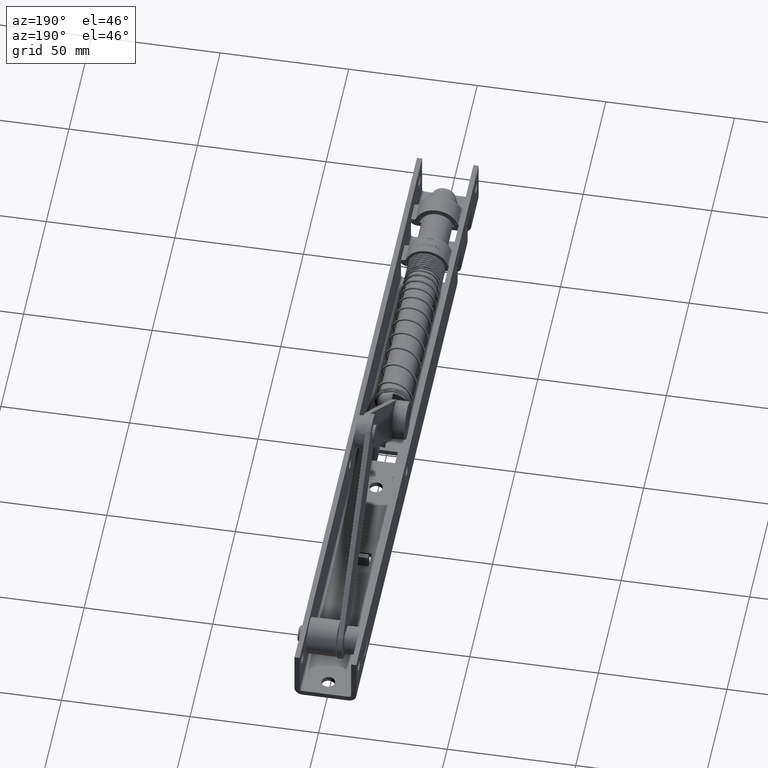
[diagram: clean part render]
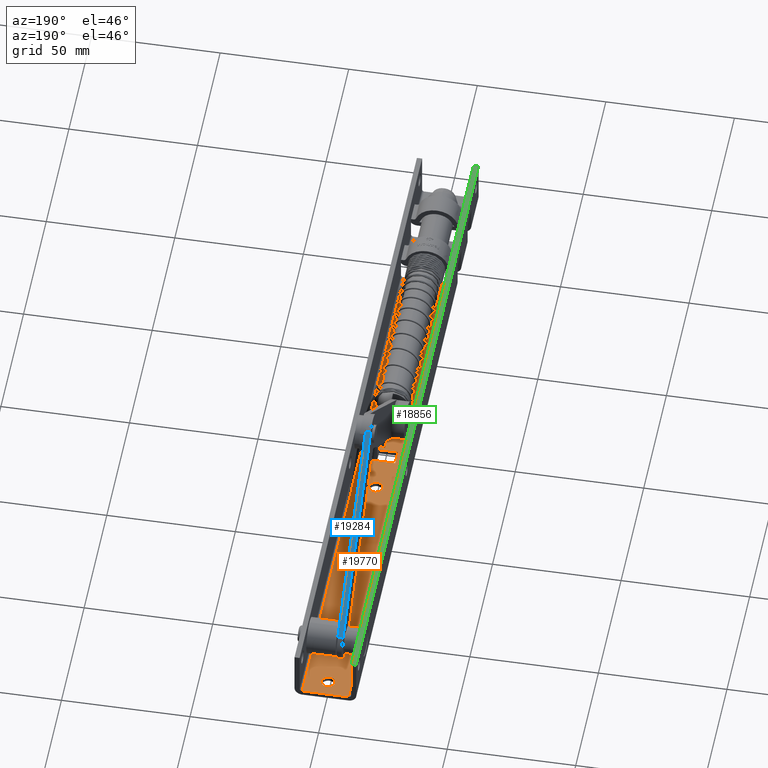
[diagram: same view with three faces highlighted in distinct colors, each labeled with its STEP entity id]
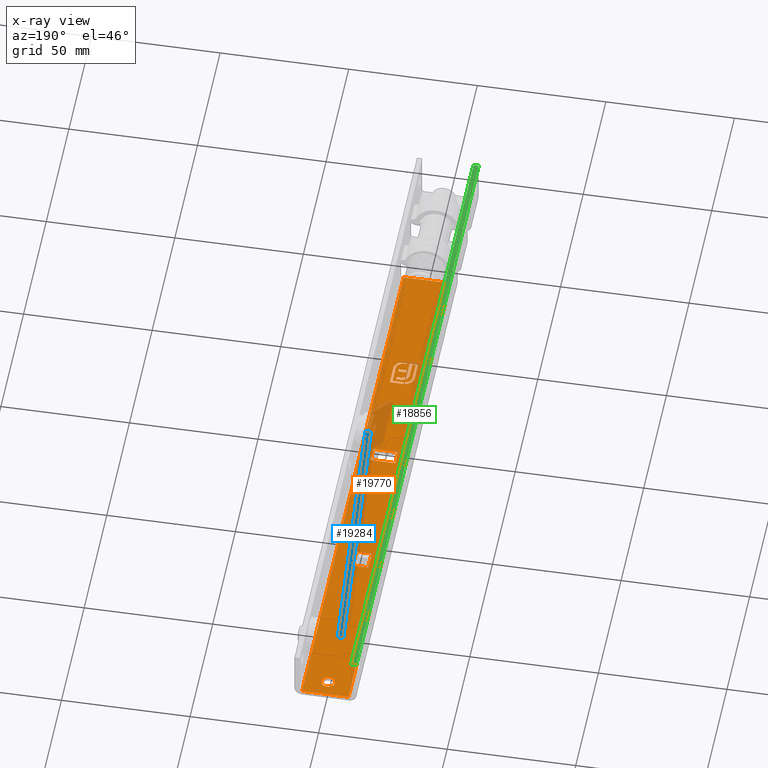
[diagram: x-ray of the same camera — body ghosted, the three highlighted faces saturated]
A machine part, auxiliary view with three faces highlighted in distinct colors.
The next image is the same camera in x-ray (body ghosted, the three faces saturated) — at least one of them is partly hidden behind the body in this view.
Their STEP definitions:

[orange] entity #19770 — the highlighted planar face has unit normal (0, 0, -1).
#2 = CARTESIAN_POINT ( 'NONE',  ( -1.450317444068548456, -32.76310203919906172, -17.99999999999999645 ) ) ;
#40 = CARTESIAN_POINT ( 'NONE',  ( 0.3541213676529288978, -35.88812421357301474, -18.00000000000000000 ) ) ;
#108 = CARTESIAN_POINT ( 'NONE',  ( 0.02687140325140589814, -35.96653243512771780, -18.00000000000000000 ) ) ;
#264 = EDGE_CURVE ( 'NONE', #19681, #2450, #3039, .T. ) ;
#285 = EDGE_CURVE ( 'NONE', #7523, #9255, #20796, .T. ) ;
#311 = CARTESIAN_POINT ( 'NONE',  ( 2.033944563684493279, -44.01110034278843841, -17.99999999999999645 ) ) ;
#334 = VERTEX_POINT ( 'NONE', #10894 ) ;
#363 = CARTESIAN_POINT ( 'NONE',  ( -2.223474969585861771, -33.02476027283003646, -18.00000000000000711 ) ) ;
#457 = VERTEX_POINT ( 'NONE', #11191 ) ;
#519 = CARTESIAN_POINT ( 'NONE',  ( 2.050510257216821230, 3.400000000000000355, -17.99999999999999645 ) ) ;
#701 = CARTESIAN_POINT ( 'NONE',  ( 3.886167483088404762, -42.42689526475390949, -18.00000000000000000 ) ) ;
#731 = EDGE_CURVE ( 'NONE', #8906, #1638, #9983, .T. ) ;
#748 = ORIENTED_EDGE ( 'NONE', *, *, #7400, .T. ) ;
#810 = DIRECTION ( 'NONE',  ( 0.000000000000000000, 0.000000000000000000, -1.000000000000000000 ) ) ;
#825 = CARTESIAN_POINT ( 'NONE',  ( -3.638908327501751305, -36.61630510846746489, -18.00000000000000000 ) ) ;
#836 = CARTESIAN_POINT ( 'NONE',  ( 4.485654303708885848, -32.67881968742711507, -18.00000000000000000 ) ) ;
#903 = AXIS2_PLACEMENT_3D ( 'NONE', #6761, #20669, #10358 ) ;
#971 = CARTESIAN_POINT ( 'NONE',  ( -2.286566965068230761, -36.87164919007444297, -17.99999999999999289 ) ) ;
#985 = CARTESIAN_POINT ( 'NONE',  ( 1.999999999999999112, 3.400000000000000355, -17.99999999999999645 ) ) ;
#1004 = CARTESIAN_POINT ( 'NONE',  ( 2.673198040587822177, -42.50387217168183440, -18.00000000000000000 ) ) ;
#1137 = ORIENTED_EDGE ( 'NONE', *, *, #7102, .T. ) ;
#1164 = CARTESIAN_POINT ( 'NONE',  ( 1.499999999999999556, 58.39999999999999147, -17.99999999999999645 ) ) ;
#1260 = CARTESIAN_POINT ( 'NONE',  ( 9.000000000000001776, 135.0000000000000000, -18.00000000000000000 ) ) ;
#1264 = EDGE_CURVE ( 'NONE', #4887, #8955, #18357, .T. ) ;
#1271 = VECTOR ( 'NONE', #18451, 1000.000000000000000 ) ;
#1300 = B_SPLINE_CURVE_WITH_KNOTS ( 'NONE', 3,
 ( #15164, #10035, #20286, #2925, #3086, #15002, #4660, #4585, #15078, #9951, #16594 ),
 .UNSPECIFIED., .F., .F.,
 ( 4, 1, 1, 1, 1, 1, 1, 1, 4 ),
 ( 0.000000000000000000, 0.1299147880206149852, 0.2554450878987838958, 0.3781545628213971999, 0.5004347043268613238, 0.6221840494551672540, 0.7449768315553542131, 0.8705846910948455974, 1.000000000000000000 ),
 .UNSPECIFIED. ) ;
#1345 = VERTEX_POINT ( 'NONE', #6509 ) ;
#1375 = EDGE_CURVE ( 'NONE', #14220, #10918, #1300, .T. ) ;
#1385 = CARTESIAN_POINT ( 'NONE',  ( -0.9195871931950996281, -33.60109770351084535, -17.99999999999999645 ) ) ;
#1399 = CARTESIAN_POINT ( 'NONE',  ( 4.327035222766502542, -41.46585024492652849, -18.00000000000000000 ) ) ;
#1403 = EDGE_CURVE ( 'NONE', #4586, #16682, #8668, .T. ) ;
#1471 = CARTESIAN_POINT ( 'NONE',  ( 4.140245801967156858, -41.96501386707861059, -18.00000000000000000 ) ) ;
#1499 = CARTESIAN_POINT ( 'NONE',  ( 3.568614095397494079, -40.46451550711189071, -18.00000000000000355 ) ) ;
#1577 = CARTESIAN_POINT ( 'NONE',  ( 3.351361071148687643, -41.52192871383324047, -17.99999999999999645 ) ) ;
#1587 = VECTOR ( 'NONE', #2546, 1000.000000000000000 ) ;
#1601 = ORIENTED_EDGE ( 'NONE', *, *, #8423, .F. ) ;
#1634 = EDGE_CURVE ( 'NONE', #8137, #5930, #16195, .T. ) ;
#1635 = CARTESIAN_POINT ( 'NONE',  ( 4.401371951936934757, -41.19701676760482911, -18.00000000000000355 ) ) ;
#1638 = VERTEX_POINT ( 'NONE', #17842 ) ;
#1684 = ORIENTED_EDGE ( 'NONE', *, *, #8944, .T. ) ;
#1698 = LINE ( 'NONE', #14991, #12502 ) ;
#1749 = VECTOR ( 'NONE', #21688, 1000.000000000000000 ) ;
#1767 = CIRCLE ( 'NONE', #903, 2.600000000000000533 ) ;
#1790 = EDGE_CURVE ( 'NONE', #334, #14779, #11418, .T. ) ;
#1875 = CARTESIAN_POINT ( 'NONE',  ( 2.484254723582923763, -43.77982271985071350, -18.00000000000000000 ) ) ;
#1894 = CARTESIAN_POINT ( 'NONE',  ( -1.135992535572663220, -37.81294611616515056, -18.00000000000000000 ) ) ;
#1951 = ORIENTED_EDGE ( 'NONE', *, *, #5854, .T. ) ;
#1957 = EDGE_CURVE ( 'NONE', #9102, #16188, #8118, .T. ) ;
#1991 = CARTESIAN_POINT ( 'NONE',  ( 0.000000000000000000, 128.5000000000000000, -18.00000000000000000 ) ) ;
#2033 = CARTESIAN_POINT ( 'NONE',  ( -3.638908327501751749, -43.38560765103803618, -18.00000000000000355 ) ) ;
#2058 = CARTESIAN_POINT ( 'NONE',  ( -1.976264850848664656, -32.91943889327797024, -17.99999999999999645 ) ) ;
#2111 = ORIENTED_EDGE ( 'NONE', *, *, #16517, .T. ) ;
#2321 = CARTESIAN_POINT ( 'NONE',  ( -3.772782376280658934, -34.25798221136635391, -18.00000000000000000 ) ) ;
#2359 = LINE ( 'NONE', #3979, #20449 ) ;
#2399 = DIRECTION ( 'NONE',  ( 1.000000000000000000, 0.000000000000000000, 0.000000000000000000 ) ) ;
#2400 = EDGE_CURVE ( 'NONE', #5976, #10205, #15372, .T. ) ;
#2450 = VERTEX_POINT ( 'NONE', #1004 ) ;
#2481 = CARTESIAN_POINT ( 'NONE',  ( -9.000000000000001776, 135.0000000000000000, -18.00000000000000000 ) ) ;
#2527 = VECTOR ( 'NONE', #8960, 1000.000000000000000 ) ;
#2536 = CARTESIAN_POINT ( 'NONE',  ( -1.104623287554216349, -37.37057203221258561, -18.00000000000000000 ) ) ;
#2546 = DIRECTION ( 'NONE',  ( -1.000000000000000000, 0.000000000000000000, 0.000000000000000000 ) ) ;
#2552 = DIRECTION ( 'NONE',  ( -0.000000000000000000, -1.000000000000000000, -0.000000000000000000 ) ) ;
#2577 = CARTESIAN_POINT ( 'NONE',  ( 3.571261954746908440, -36.97786330767436880, -17.99999999999999645 ) ) ;
#2606 = CARTESIAN_POINT ( 'NONE',  ( -1.030311470326395806, -37.03966727183139795, -18.00000000000000355 ) ) ;
#2619 = EDGE_CURVE ( 'NONE', #6500, #13455, #9248, .T. ) ;
#2686 = CARTESIAN_POINT ( 'NONE',  ( -1.135992535572663220, -37.81294611616515056, -18.00000000000000000 ) ) ;
#2692 = VERTEX_POINT ( 'NONE', #18640 ) ;
#2736 = B_SPLINE_CURVE_WITH_KNOTS ( 'NONE', 3,
 ( #1875, #19353, #13937, #311, #17404, #7176, #14095, #15682, #19276, #8822, #3755 ),
 .UNSPECIFIED., .F., .F.,
 ( 4, 1, 1, 1, 1, 1, 1, 1, 4 ),
 ( 0.000000000000000000, 0.1255101535771533106, 0.2499629154941278575, 0.3729415475394177726, 0.4954949726337940508, 0.6195755186633556955, 0.7452592868548891802, 0.8712004049175039455, 1.000000000000000000 ),
 .UNSPECIFIED. ) ;
#2739 = CARTESIAN_POINT ( 'NONE',  ( 1.005365057149520513, -34.66389083275017668, -18.00000000000000000 ) ) ;
#2742 = ORIENTED_EDGE ( 'NONE', *, *, #8605, .T. ) ;
#2743 = CARTESIAN_POINT ( 'NONE',  ( -9.000000000000001776, 135.0000000000000000, -18.00000000000000000 ) ) ;
#2799 = CARTESIAN_POINT ( 'NONE',  ( -0.7553255921017431040, -36.49378437341909631, -17.99999999999999289 ) ) ;
#2841 = CARTESIAN_POINT ( 'NONE',  ( 0.5481688826685310323, -43.38560765103802908, -18.00000000000000000 ) ) ;
#2908 = DIRECTION ( 'NONE',  ( -1.000000000000000000, 0.000000000000000000, 0.000000000000000000 ) ) ;
#2911 = ORIENTED_EDGE ( 'NONE', *, *, #6887, .T. ) ;
#2925 = CARTESIAN_POINT ( 'NONE',  ( -3.143713586427143714, -34.95169961704521455, -18.00000000000000000 ) ) ;
#2951 = VERTEX_POINT ( 'NONE', #3465 ) ;
#2956 = CARTESIAN_POINT ( 'NONE',  ( -0.6321436902262667079, -36.36438068579427352, -18.00000000000000000 ) ) ;
#2964 = CARTESIAN_POINT ( 'NONE',  ( 4.327035222766502542, -41.46585024492652849, -18.00000000000000000 ) ) ;
#2993 = CARTESIAN_POINT ( 'NONE',  ( 2.600000000000000533, 23.30000000000000782, -18.00000000000000000 ) ) ;
#3002 = CARTESIAN_POINT ( 'NONE',  ( 1.477723349661767216, -33.59321203638909736, -18.00000000000000355 ) ) ;
#3039 = B_SPLINE_CURVE_WITH_KNOTS ( 'NONE', 3,
 ( #7454, #21376, #9185, #14522, #4114, #16264, #12643, #5802, #17846, #7531, #9087 ),
 .UNSPECIFIED., .F., .F.,
 ( 4, 1, 1, 1, 1, 1, 1, 1, 4 ),
 ( 0.000000000000000000, 0.1294153089051538752, 0.2550231684446465641, 0.3778159505448313582, 0.4995652956731370109, 0.6218454371786021895, 0.7445549121012156046, 0.8700852119793837103, 1.000000000000000000 ),
 .UNSPECIFIED. ) ;
#3056 = CARTESIAN_POINT ( 'NONE',  ( 4.299576952920486583, -41.55108902218132272, -17.99999999999999645 ) ) ;
#3086 = CARTESIAN_POINT ( 'NONE',  ( -3.298808269065094834, -35.19954755357885290, -18.00000000000000355 ) ) ;
#3215 = CARTESIAN_POINT ( 'NONE',  ( 4.481076337826851663, -40.64399703952526721, -17.99999999999999645 ) ) ;
#3240 = CARTESIAN_POINT ( 'NONE',  ( 3.225846370903273641, -41.78722937313548869, -18.00000000000000355 ) ) ;
#3284 = CARTESIAN_POINT ( 'NONE',  ( 4.025474885859118501, -42.20314633074607258, -18.00000000000000000 ) ) ;
#3334 = CARTESIAN_POINT ( 'NONE',  ( 0.7837648705388364778, -35.86053184044786946, -18.00000000000000000 ) ) ;
#3354 = AXIS2_PLACEMENT_3D ( 'NONE', #19711, #810, #9602 ) ;
#3357 = EDGE_CURVE ( 'NONE', #5930, #20531, #10485, .T. ) ;
#3358 = VECTOR ( 'NONE', #8735, 1000.000000000000000 ) ;
#3388 = B_SPLINE_CURVE_WITH_KNOTS ( 'NONE', 3,
 ( #21147, #17843, #7606, #363, #2058, #14144, #10844 ),
 .UNSPECIFIED., .F., .F.,
 ( 4, 1, 1, 1, 4 ),
 ( 0.000000000000000000, 0.2494004055988088275, 0.4982698082868709522, 0.7477365097776036418, 1.000000000000000000 ),
 .UNSPECIFIED. ) ;
#3465 = CARTESIAN_POINT ( 'NONE',  ( 9.000000000000001776, 135.0000000000000000, -18.00000000000000000 ) ) ;
#3514 = EDGE_CURVE ( 'NONE', #16682, #334, #17768, .T. ) ;
#3523 = CARTESIAN_POINT ( 'NONE',  ( 3.571261954746908440, -40.36251457895965444, -18.00000000000000000 ) ) ;
#3550 = ORIENTED_EDGE ( 'NONE', *, *, #1403, .T. ) ;
#3632 = LINE ( 'NONE', #5678, #7443 ) ;
#3667 = VERTEX_POINT ( 'NONE', #13563 ) ;
#3755 = CARTESIAN_POINT ( 'NONE',  ( 0.5481688826685310323, -44.30000000000000426, -18.00000000000000000 ) ) ;
#3979 = CARTESIAN_POINT ( 'NONE',  ( 0.1236295777933272000, -43.38560765103802908, -17.99999999999999645 ) ) ;
#4053 = ORIENTED_EDGE ( 'NONE', *, *, #12701, .T. ) ;
#4055 = ORIENTED_EDGE ( 'NONE', *, *, #1957, .T. ) ;
#4114 = CARTESIAN_POINT ( 'NONE',  ( 1.430905548908907088, -43.26819815394500779, -18.00000000000000711 ) ) ;
#4179 = DIRECTION ( 'NONE',  ( 0.000000000000000000, -1.000000000000000000, 0.000000000000000000 ) ) ;
#4254 = VECTOR ( 'NONE', #2399, 1000.000000000000000 ) ;
#4265 = CARTESIAN_POINT ( 'NONE',  ( 4.500000000000000888, 3.400000000000014122, -18.00000000000000000 ) ) ;
#4346 = CARTESIAN_POINT ( 'NONE',  ( -2.392711762982813184, -37.88050666673603928, -18.00000000000000000 ) ) ;
#4403 = ORIENTED_EDGE ( 'NONE', *, *, #21759, .T. ) ;
#4448 = CARTESIAN_POINT ( 'NONE',  ( -1.762720641131485744, -35.71249189694207615, -18.00000000000000000 ) ) ;
#4454 = B_SPLINE_CURVE_WITH_KNOTS ( 'NONE', 3,
 ( #13172, #2606, #11373, #2536, #18377, #20100, #2686 ),
 .UNSPECIFIED., .F., .F.,
 ( 4, 1, 1, 1, 4 ),
 ( 0.000000000000000000, 0.2296577939907704369, 0.4728894664265891890, 0.7276593582172848906, 1.000000000000000000 ),
 .UNSPECIFIED. ) ;
#4459 = CARTESIAN_POINT ( 'NONE',  ( 1.689993002099368757, -34.66389083275016958, -17.99999999999999645 ) ) ;
#4505 = ORIENTED_EDGE ( 'NONE', *, *, #16611, .T. ) ;
#4585 = CARTESIAN_POINT ( 'NONE',  ( -3.587041624949769858, -36.01829077602744178, -17.99999999999999289 ) ) ;
#4586 = VERTEX_POINT ( 'NONE', #21430 ) ;
#4587 = VERTEX_POINT ( 'NONE', #21584 ) ;
#4591 = EDGE_CURVE ( 'NONE', #5036, #5932, #15582, .T. ) ;
#4614 = B_SPLINE_CURVE_WITH_KNOTS ( 'NONE', 3,
 ( #11221, #4346, #19806, #9488, #971, #13097, #8070 ),
 .UNSPECIFIED., .F., .F.,
 ( 4, 1, 1, 1, 4 ),
 ( 0.000000000000000000, 0.2752367449667298405, 0.5313220627563610687, 0.7730509928784784490, 1.000000000000000000 ),
 .UNSPECIFIED. ) ;
#4645 = FACE_BOUND ( 'NONE', #6443, .T. ) ;
#4660 = CARTESIAN_POINT ( 'NONE',  ( -3.521498830408722469, -35.73356844222711004, -18.00000000000001066 ) ) ;
#4726 = CARTESIAN_POINT ( 'NONE',  ( -4.553300676463728713, -40.45815255423372747, -17.99999999999999645 ) ) ;
#4853 = CARTESIAN_POINT ( 'NONE',  ( -1.215845316031593182, -33.64391603409184484, -18.00000000000000355 ) ) ;
#4866 = CARTESIAN_POINT ( 'NONE',  ( 4.244961514700892558, -41.72063186662055045, -17.99999999999999645 ) ) ;
#4887 = VERTEX_POINT ( 'NONE', #1164 ) ;
#5028 = CARTESIAN_POINT ( 'NONE',  ( -4.500000000000000888, 63.39999999999999858, -18.00000000000000000 ) ) ;
#5036 = VERTEX_POINT ( 'NONE', #1894 ) ;
#5106 = CARTESIAN_POINT ( 'NONE',  ( -1.560531840447867635, -35.49897364124096555, -18.00000000000000000 ) ) ;
#5113 = CARTESIAN_POINT ( 'NONE',  ( -0.6158152554233747855, -32.67881968742711507, -18.00000000000000000 ) ) ;
#5244 = EDGE_CURVE ( 'NONE', #16086, #2951, #13726, .T. ) ;
#5297 = CARTESIAN_POINT ( 'NONE',  ( -0.03498950314905716757, -35.98649405178447580, -18.00000000000000000 ) ) ;
#5357 = VECTOR ( 'NONE', #16649, 1000.000000000000000 ) ;
#5409 = CARTESIAN_POINT ( 'NONE',  ( -3.638908327501751305, -40.00095637975275054, -18.00000000000000000 ) ) ;
#5426 = EDGE_LOOP ( 'NONE', ( #4053, #1951, #5658, #15218, #4055, #9234, #5689, #17227, #11079, #15068, #10283, #15107, #2111, #17750, #16394, #17521, #12407, #6400, #22055, #748, #10554, #12939, #5909, #13222, #15061, #19686, #6673, #4505, #7063, #15664, #20951, #6223, #6521, #19899, #18645, #3550, #19469, #16650, #11584, #19984 ) ) ;
#5429 = LINE ( 'NONE', #13238, #17840 ) ;
#5454 = LINE ( 'NONE', #21180, #6260 ) ;
#5474 = DIRECTION ( 'NONE',  ( 1.000000000000000000, 0.000000000000000000, 0.000000000000000000 ) ) ;
#5480 = EDGE_CURVE ( 'NONE', #18055, #18184, #8291, .T. ) ;
#5500 = CARTESIAN_POINT ( 'NONE',  ( -4.500000000000000888, 65.90000000000000568, -18.00000000000000000 ) ) ;
#5626 = ORIENTED_EDGE ( 'NONE', *, *, #5244, .F. ) ;
#5658 = ORIENTED_EDGE ( 'NONE', *, *, #285, .T. ) ;
#5678 = CARTESIAN_POINT ( 'NONE',  ( 2.000000000000000000, 9.400000000000000355, -17.99999999999999645 ) ) ;
#5688 = ORIENTED_EDGE ( 'NONE', *, *, #2400, .F. ) ;
#5689 = ORIENTED_EDGE ( 'NONE', *, *, #7048, .T. ) ;
#5746 = VERTEX_POINT ( 'NONE', #6656 ) ;
#5747 = B_SPLINE_CURVE_WITH_KNOTS ( 'NONE', 3,
 ( #8124, #13366, #9757, #7978, #16690, #6382, #6542 ),
 .UNSPECIFIED., .F., .F.,
 ( 4, 1, 1, 1, 4 ),
 ( 0.000000000000000000, 0.2411211622112601205, 0.4851305330037706809, 0.7363631959406389260, 1.000000000000000000 ),
 .UNSPECIFIED. ) ;
#5802 = CARTESIAN_POINT ( 'NONE',  ( 2.212774374090781926, -42.89041290996342326, -18.00000000000000000 ) ) ;
#5854 = EDGE_CURVE ( 'NONE', #12461, #7523, #17982, .T. ) ;
#5895 = CARTESIAN_POINT ( 'NONE',  ( -5.000000000000000000, 9.400000000000000355, -17.99999999999999645 ) ) ;
#5909 = ORIENTED_EDGE ( 'NONE', *, *, #18445, .T. ) ;
#5915 = CARTESIAN_POINT ( 'NONE',  ( -4.033123396314440612, -34.68021926755307760, -18.00000000000000000 ) ) ;
#5930 = VERTEX_POINT ( 'NONE', #21088 ) ;
#5932 = VERTEX_POINT ( 'NONE', #12286 ) ;
#5960 = CARTESIAN_POINT ( 'NONE',  ( -0.4898530440867760460, -34.86916258455797646, -18.00000000000000000 ) ) ;
#5973 = VERTEX_POINT ( 'NONE', #5500 ) ;
#5976 = VERTEX_POINT ( 'NONE', #519 ) ;
#6223 = ORIENTED_EDGE ( 'NONE', *, *, #14623, .T. ) ;
#6230 = CARTESIAN_POINT ( 'NONE',  ( -2.600000000000000533, 23.30000000000000782, -18.00000000000000000 ) ) ;
#6260 = VECTOR ( 'NONE', #6900, 1000.000000000000000 ) ;
#6279 = CARTESIAN_POINT ( 'NONE',  ( -3.474457662701191829, -44.30000000000000426, -18.00000000000000355 ) ) ;
#6293 = CARTESIAN_POINT ( 'NONE',  ( -1.627305106038607230, -35.56948848255858309, -18.00000000000000711 ) ) ;
#6299 = FACE_BOUND ( 'NONE', #20254, .T. ) ;
#6337 = CARTESIAN_POINT ( 'NONE',  ( -2.599999999999997424, 128.5000000000000000, -18.00000000000000000 ) ) ;
#6341 = DIRECTION ( 'NONE',  ( 0.000000000000000000, 0.000000000000000000, -1.000000000000000000 ) ) ;
#6365 = CARTESIAN_POINT ( 'NONE',  ( 2.626073907737920710, -43.69253077482726866, -18.00000000000000000 ) ) ;
#6367 = EDGE_CURVE ( 'NONE', #16472, #17855, #1767, .T. ) ;
#6382 = CARTESIAN_POINT ( 'NONE',  ( -0.5944740246300963538, -34.90441537889630297, -17.99999999999999645 ) ) ;
#6400 = ORIENTED_EDGE ( 'NONE', *, *, #19526, .T. ) ;
#6443 = EDGE_LOOP ( 'NONE', ( #12977, #18124, #21496, #1137, #19966, #20122 ) ) ;
#6500 = VERTEX_POINT ( 'NONE', #6839 ) ;
#6509 = CARTESIAN_POINT ( 'NONE',  ( 4.500000000000000888, 9.399999999999991473, -18.00000000000000000 ) ) ;
#6521 = ORIENTED_EDGE ( 'NONE', *, *, #20980, .T. ) ;
#6529 = CARTESIAN_POINT ( 'NONE',  ( -0.6321436902262667079, -36.36438068579427352, -18.00000000000000000 ) ) ;
#6539 = CARTESIAN_POINT ( 'NONE',  ( -0.09072450085901902217, -36.00865436652097173, -18.00000000000000000 ) ) ;
#6542 = CARTESIAN_POINT ( 'NONE',  ( -0.4898530440867760460, -34.86916258455797646, -18.00000000000000000 ) ) ;
#6615 = CARTESIAN_POINT ( 'NONE',  ( -0.5886544926262664568, -36.32374507109149420, -18.00000000000000000 ) ) ;
#6656 = CARTESIAN_POINT ( 'NONE',  ( 1.500000000000001332, 65.90000000000000568, -18.00000000000000000 ) ) ;
#6673 = ORIENTED_EDGE ( 'NONE', *, *, #16800, .T. ) ;
#6695 = VECTOR ( 'NONE', #15317, 1000.000000000000000 ) ;
#6715 = VECTOR ( 'NONE', #11763, 1000.000000000000000 ) ;
#6731 = VERTEX_POINT ( 'NONE', #11621 ) ;
#6738 = CARTESIAN_POINT ( 'NONE',  ( 2.744796266652481886, -42.42906937682454327, -18.00000000000000000 ) ) ;
#6751 = B_SPLINE_CURVE_WITH_KNOTS ( 'NONE', 3,
 ( #5915, #17889, #2321, #14567, #12686, #14338, #18031 ),
 .UNSPECIFIED., .F., .F.,
 ( 4, 1, 1, 1, 4 ),
 ( 0.000000000000000000, 0.2548261097762422600, 0.5042880443381977384, 0.7513476757168016107, 1.000000000000000000 ),
 .UNSPECIFIED. ) ;
#6761 = CARTESIAN_POINT ( 'NONE',  ( 0.000000000000000000, 23.30000000000000782, -18.00000000000000000 ) ) ;
#6839 = CARTESIAN_POINT ( 'NONE',  ( -2.190342897130862276, -36.53699556799627146, -18.00000000000000000 ) ) ;
#6841 = VERTEX_POINT ( 'NONE', #18106 ) ;
#6846 = CARTESIAN_POINT ( 'NONE',  ( -2.682370053288262834, -34.41967772448352036, -18.00000000000000355 ) ) ;
#6887 = EDGE_CURVE ( 'NONE', #16086, #18055, #9848, .T. ) ;
#6900 = DIRECTION ( 'NONE',  ( 0.000000000000000000, -1.000000000000000000, 0.000000000000000000 ) ) ;
#6940 = CARTESIAN_POINT ( 'NONE',  ( -1.175356403773541114, -32.71592427327900054, -18.00000000000001066 ) ) ;
#6948 = LINE ( 'NONE', #13280, #6695 ) ;
#6970 = VERTEX_POINT ( 'NONE', #13801 ) ;
#7048 = EDGE_CURVE ( 'NONE', #14520, #2692, #2736, .T. ) ;
#7063 = ORIENTED_EDGE ( 'NONE', *, *, #731, .T. ) ;
#7076 = CARTESIAN_POINT ( 'NONE',  ( -4.074388551986989349, -34.75442184059345152, -18.00000000000000000 ) ) ;
#7090 = CARTESIAN_POINT ( 'NONE',  ( -0.3009097270818767433, -43.84280382551902022, -17.99999999999999645 ) ) ;
#7102 = EDGE_CURVE ( 'NONE', #11242, #4887, #17165, .T. ) ;
#7151 = VECTOR ( 'NONE', #21171, 1000.000000000000000 ) ;
#7176 = CARTESIAN_POINT ( 'NONE',  ( 1.560126370709475685, -44.17168918761069563, -18.00000000000000000 ) ) ;
#7400 = EDGE_CURVE ( 'NONE', #11318, #6500, #4614, .T. ) ;
#7443 = VECTOR ( 'NONE', #17803, 1000.000000000000000 ) ;
#7444 = VECTOR ( 'NONE', #2552, 1000.000000000000000 ) ;
#7447 = CARTESIAN_POINT ( 'NONE',  ( 9.000000000000001776, -88.60000000000000853, -18.00000000000000000 ) ) ;
#7454 = CARTESIAN_POINT ( 'NONE',  ( 0.5481688826685310323, -43.38560765103802908, -18.00000000000000000 ) ) ;
#7472 = CARTESIAN_POINT ( 'NONE',  ( -0.03498950314905716757, -35.98649405178447580, -18.00000000000000000 ) ) ;
#7485 = EDGE_CURVE ( 'NONE', #1345, #10205, #21979, .T. ) ;
#7523 = VERTEX_POINT ( 'NONE', #836 ) ;
#7531 = CARTESIAN_POINT ( 'NONE',  ( 2.599296334872197356, -42.57485872705779428, -17.99999999999999645 ) ) ;
#7573 = EDGE_CURVE ( 'NONE', #1638, #5036, #4454, .T. ) ;
#7606 = CARTESIAN_POINT ( 'NONE',  ( -2.465718987708267917, -33.13888870561014954, -17.99999999999999645 ) ) ;
#7630 = B_SPLINE_CURVE_WITH_KNOTS ( 'NONE', 3,
 ( #8001, #11831, #3215, #11986, #1635, #18818, #17117 ),
 .UNSPECIFIED., .F., .F.,
 ( 4, 1, 1, 1, 4 ),
 ( 0.000000000000000000, 0.2525049582863170272, 0.5021773156323344756, 0.7501012456036265652, 0.9999999999999998890 ),
 .UNSPECIFIED. ) ;
#7648 = CARTESIAN_POINT ( 'NONE',  ( 3.280293758171322516, -43.19653313455947341, -18.00000000000000355 ) ) ;
#7733 = EDGE_CURVE ( 'NONE', #5973, #4587, #14702, .T. ) ;
#7972 = DIRECTION ( 'NONE',  ( 0.000000000000000000, 1.000000000000000000, -1.742990517542028629E-14 ) ) ;
#7978 = CARTESIAN_POINT ( 'NONE',  ( -1.079580021634196862, -35.12274943615959444, -18.00000000000000000 ) ) ;
#8001 = CARTESIAN_POINT ( 'NONE',  ( 4.485654303708885848, -40.36251457895965444, -18.00000000000000000 ) ) ;
#8014 = DIRECTION ( 'NONE',  ( -1.000000000000000000, 0.000000000000000000, 0.000000000000000000 ) ) ;
#8038 = CARTESIAN_POINT ( 'NONE',  ( -4.553300676463729602, -44.30000000000000426, -18.00000000000000000 ) ) ;
#8061 = CARTESIAN_POINT ( 'NONE',  ( -2.395614648938653612, -43.38560765103802908, -18.00000000000000000 ) ) ;
#8070 = CARTESIAN_POINT ( 'NONE',  ( -2.190342897130862276, -36.53699556799627146, -18.00000000000000000 ) ) ;
#8079 = DIRECTION ( 'NONE',  ( 0.000000000000000000, 1.000000000000000000, 0.000000000000000000 ) ) ;
#8118 = B_SPLINE_CURVE_WITH_KNOTS ( 'NONE', 3,
 ( #1399, #3056, #4866, #1471, #3284, #15346, #20397 ),
 .UNSPECIFIED., .F., .F.,
 ( 4, 1, 1, 1, 4 ),
 ( 0.000000000000000000, 0.2531688454537583954, 0.5035614958825523901, 0.7514299623983505816, 1.000000000000000000 ),
 .UNSPECIFIED. ) ;
#8124 = CARTESIAN_POINT ( 'NONE',  ( -1.560531840447867635, -35.49897364124096555, -18.00000000000000000 ) ) ;
#8137 = VERTEX_POINT ( 'NONE', #16047 ) ;
#8170 = DIRECTION ( 'NONE',  ( 1.000000000000000000, 0.000000000000000000, 2.300028724179145437E-14 ) ) ;
#8235 = LINE ( 'NONE', #7090, #2527 ) ;
#8272 = CARTESIAN_POINT ( 'NONE',  ( 4.485654303708885848, -40.36251457895965444, -18.00000000000000000 ) ) ;
#8291 = LINE ( 'NONE', #19888, #18242 ) ;
#8423 = EDGE_CURVE ( 'NONE', #1345, #6731, #9298, .T. ) ;
#8479 = CARTESIAN_POINT ( 'NONE',  ( 3.563376287625152905, -40.66628651673138961, -18.00000000000000355 ) ) ;
#8511 = CARTESIAN_POINT ( 'NONE',  ( -1.501084654326006795, -33.71425806647445000, -17.99999999999998934 ) ) ;
#8605 = EDGE_CURVE ( 'NONE', #13401, #17706, #13054, .T. ) ;
#8607 = CARTESIAN_POINT ( 'NONE',  ( -0.8972977159889966581, -32.68339765330915725, -17.99999999999999645 ) ) ;
#8664 = EDGE_CURVE ( 'NONE', #10918, #14305, #20350, .T. ) ;
#8668 = LINE ( 'NONE', #6279, #13517 ) ;
#8676 = CARTESIAN_POINT ( 'NONE',  ( 2.374620947049217001, -40.08026592022394397, -18.00000000000000000 ) ) ;
#8690 = EDGE_CURVE ( 'NONE', #21047, #6970, #8235, .T. ) ;
#8706 = CARTESIAN_POINT ( 'NONE',  ( -1.010030324236063981, -36.97786330767436880, -18.00000000000000000 ) ) ;
#8735 = DIRECTION ( 'NONE',  ( -0.000000000000000000, -1.000000000000000000, -0.000000000000000000 ) ) ;
#8767 = CARTESIAN_POINT ( 'NONE',  ( -4.033123396314440612, -34.68021926755307760, -18.00000000000000000 ) ) ;
#8818 = VECTOR ( 'NONE', #8170, 1000.000000000000000 ) ;
#8822 = CARTESIAN_POINT ( 'NONE',  ( 0.6353398570859973837, -44.29916431593201764, -17.99999999999999645 ) ) ;
#8830 = CARTESIAN_POINT ( 'NONE',  ( 1.500000000000001332, 65.40000000000000568, -18.00000000000000000 ) ) ;
#8906 = VERTEX_POINT ( 'NONE', #20005 ) ;
#8929 = CARTESIAN_POINT ( 'NONE',  ( 1.005365057149520513, -34.66389083275017668, -18.00000000000000000 ) ) ;
#8944 = EDGE_CURVE ( 'NONE', #17855, #16472, #10643, .T. ) ;
#8955 = VERTEX_POINT ( 'NONE', #14892 ) ;
#8960 = DIRECTION ( 'NONE',  ( -9.295949426892288795E-16, 1.000000000000000000, 0.000000000000000000 ) ) ;
#8988 = CARTESIAN_POINT ( 'NONE',  ( -1.135992535572663220, -40.08026592022394397, -18.00000000000000000 ) ) ;
#9055 = DIRECTION ( 'NONE',  ( 1.000000000000000000, -1.312369330855162529E-13, 0.000000000000000000 ) ) ;
#9087 = CARTESIAN_POINT ( 'NONE',  ( 2.673198040587822177, -42.50387217168183440, -18.00000000000000000 ) ) ;
#9102 = VERTEX_POINT ( 'NONE', #2964 ) ;
#9185 = CARTESIAN_POINT ( 'NONE',  ( 0.8512514250679839023, -43.37812159770346909, -17.99999999999999645 ) ) ;
#9199 = VECTOR ( 'NONE', #21247, 1000.000000000000000 ) ;
#9234 = ORIENTED_EDGE ( 'NONE', *, *, #14319, .T. ) ;
#9248 = B_SPLINE_CURVE_WITH_KNOTS ( 'NONE', 3,
 ( #20218, #11637, #18261, #16840, #4448, #6293, #21789 ),
 .UNSPECIFIED., .F., .F.,
 ( 4, 1, 1, 1, 4 ),
 ( 0.000000000000000000, 0.2650465622674556543, 0.5182727197139298525, 0.7624607574988803149, 1.000000000000000000 ),
 .UNSPECIFIED. ) ;
#9255 = VERTEX_POINT ( 'NONE', #8272 ) ;
#9298 = LINE ( 'NONE', #21836, #21958 ) ;
#9342 = B_SPLINE_CURVE_WITH_KNOTS ( 'NONE', 3,
 ( #22030, #16854, #18275, #18567, #20317, #21962, #2739 ),
 .UNSPECIFIED., .F., .F.,
 ( 4, 1, 1, 1, 4 ),
 ( 0.000000000000000000, 0.2252149288326737164, 0.4659087912857244884, 0.7243281698455824591, 1.000000000000000000 ),
 .UNSPECIFIED. ) ;
#9488 = CARTESIAN_POINT ( 'NONE',  ( -2.350288238426208487, -37.22927617788813137, -17.99999999999999289 ) ) ;
#9602 = DIRECTION ( 'NONE',  ( -1.000000000000000000, 0.000000000000000000, 0.000000000000000000 ) ) ;
#9757 = CARTESIAN_POINT ( 'NONE',  ( -1.339074350695141025, -35.29040726624885593, -18.00000000000000000 ) ) ;
#9776 = DIRECTION ( 'NONE',  ( 1.445602896647339163E-16, 1.000000000000000000, -0.000000000000000000 ) ) ;
#9804 = LINE ( 'NONE', #17872, #12240 ) ;
#9847 = VECTOR ( 'NONE', #7972, 1000.000000000000000 ) ;
#9848 = LINE ( 'NONE', #11171, #7444 ) ;
#9865 = LINE ( 'NONE', #2577, #9847 ) ;
#9951 = CARTESIAN_POINT ( 'NONE',  ( -3.636388262623102552, -36.51427702553783661, -18.00000000000000000 ) ) ;
#9983 = B_SPLINE_CURVE_WITH_KNOTS ( 'NONE', 3,
 ( #6529, #18641, #2799, #14880, #19004, #10198, #8706 ),
 .UNSPECIFIED., .F., .F.,
 ( 4, 1, 1, 1, 4 ),
 ( 0.000000000000000000, 0.2455891591026249376, 0.4905057002791235465, 0.7406289399192093059, 1.000000000000000000 ),
 .UNSPECIFIED. ) ;
#10008 = ORIENTED_EDGE ( 'NONE', *, *, #21405, .T. ) ;
#10035 = CARTESIAN_POINT ( 'NONE',  ( -2.828159403521519621, -34.56517765626379912, -17.99999999999999645 ) ) ;
#10084 = CARTESIAN_POINT ( 'NONE',  ( -4.552464992395749199, -36.52913413405000398, -18.00000000000000000 ) ) ;
#10103 = EDGE_CURVE ( 'NONE', #11242, #5746, #11186, .T. ) ;
#10112 = DIRECTION ( 'NONE',  ( -1.000000000000000000, -1.088306274367687145E-13, 0.000000000000000000 ) ) ;
#10153 = CARTESIAN_POINT ( 'NONE',  ( -4.353019137840426822, -35.36483831940351763, -17.99999999999999645 ) ) ;
#10157 = VERTEX_POINT ( 'NONE', #8988 ) ;
#10184 = CARTESIAN_POINT ( 'NONE',  ( 3.520557957044158304, -40.96254463956787362, -18.00000000000000000 ) ) ;
#10192 = B_SPLINE_CURVE_WITH_KNOTS ( 'NONE', 3,
 ( #701, #16068, #17957, #7648, #16672, #6365, #10953 ),
 .UNSPECIFIED., .F., .F.,
 ( 4, 1, 1, 1, 4 ),
 ( 0.000000000000000000, 0.2502112839297326863, 0.4976763372912422212, 0.7465535718222471306, 1.000000000000000000 ),
 .UNSPECIFIED. ) ;
#10198 = CARTESIAN_POINT ( 'NONE',  ( -0.9884657379847195946, -36.91872055979503386, -18.00000000000000000 ) ) ;
#10205 = VERTEX_POINT ( 'NONE', #15906 ) ;
#10223 = EDGE_CURVE ( 'NONE', #2692, #21047, #14686, .T. ) ;
#10283 = ORIENTED_EDGE ( 'NONE', *, *, #264, .T. ) ;
#10358 = DIRECTION ( 'NONE',  ( -1.000000000000000000, 0.000000000000000000, 0.000000000000000000 ) ) ;
#10485 = LINE ( 'NONE', #14550, #1587 ) ;
#10522 = VERTEX_POINT ( 'NONE', #3523 ) ;
#10528 = CARTESIAN_POINT ( 'NONE',  ( -4.033123396314440612, -34.68021926755307760, -18.00000000000000000 ) ) ;
#10554 = ORIENTED_EDGE ( 'NONE', *, *, #2619, .T. ) ;
#10643 = CIRCLE ( 'NONE', #3354, 2.600000000000000533 ) ;
#10789 = CARTESIAN_POINT ( 'NONE',  ( 3.571261954746908440, -33.59321203638909026, -18.00000000000000000 ) ) ;
#10815 = VERTEX_POINT ( 'NONE', #14527 ) ;
#10836 = VERTEX_POINT ( 'NONE', #5960 ) ;
#10844 = CARTESIAN_POINT ( 'NONE',  ( -1.719150921390251385, -32.83743876836949482, -17.99999999999999645 ) ) ;
#10894 = CARTESIAN_POINT ( 'NONE',  ( -4.553300676463729602, -36.61630510846746489, -18.00000000000000000 ) ) ;
#10918 = VERTEX_POINT ( 'NONE', #825 ) ;
#10953 = CARTESIAN_POINT ( 'NONE',  ( 2.484254723582923763, -43.77982271985071350, -18.00000000000000000 ) ) ;
#11002 = VECTOR ( 'NONE', #19703, 1000.000000000000000 ) ;
#11079 = ORIENTED_EDGE ( 'NONE', *, *, #8690, .T. ) ;
#11171 = CARTESIAN_POINT ( 'NONE',  ( -9.000000000000001776, 135.0000000000000000, -18.00000000000000000 ) ) ;
#11186 = LINE ( 'NONE', #8830, #7151 ) ;
#11191 = CARTESIAN_POINT ( 'NONE',  ( -1.719150921390251385, -32.83743876836949482, -17.99999999999999645 ) ) ;
#11221 = CARTESIAN_POINT ( 'NONE',  ( -2.395614648938653612, -38.01821786797295033, -18.00000000000000000 ) ) ;
#11228 = CARTESIAN_POINT ( 'NONE',  ( -9.000000000000001776, 135.0000000000000000, -18.00000000000000000 ) ) ;
#11242 = VERTEX_POINT ( 'NONE', #13687 ) ;
#11278 = ORIENTED_EDGE ( 'NONE', *, *, #13408, .F. ) ;
#11299 = CARTESIAN_POINT ( 'NONE',  ( 2.599999999999997424, 128.5000000000000000, -18.00000000000000000 ) ) ;
#11318 = VERTEX_POINT ( 'NONE', #14130 ) ;
#11370 = VECTOR ( 'NONE', #18104, 1000.000000000000000 ) ;
#11373 = CARTESIAN_POINT ( 'NONE',  ( -1.072072475631366872, -37.16692811121068729, -18.00000000000000000 ) ) ;
#11390 = LINE ( 'NONE', #16534, #20014 ) ;
#11415 = CARTESIAN_POINT ( 'NONE',  ( -1.135992535572663220, -38.35644973174714067, -17.99999999999999645 ) ) ;
#11418 = B_SPLINE_CURVE_WITH_KNOTS ( 'NONE', 3,
 ( #18671, #10084, #22134, #11822, #15275, #20479, #10153, #22214, #13620, #7076, #10528 ),
 .UNSPECIFIED., .F., .F.,
 ( 4, 1, 1, 1, 1, 1, 1, 1, 4 ),
 ( 0.000000000000000000, 0.1287995950824959157, 0.2547407131451111528, 0.3804244813366466915, 0.5045050273662051721, 0.6270584524605828936, 0.7500370845058741409, 0.8744898464228465507, 1.000000000000000000 ),
 .UNSPECIFIED. ) ;
#11584 = ORIENTED_EDGE ( 'NONE', *, *, #14416, .T. ) ;
#11621 = CARTESIAN_POINT ( 'NONE',  ( 2.050510257216822119, 9.399999999999991473, -18.00000000000000000 ) ) ;
#11637 = CARTESIAN_POINT ( 'NONE',  ( -2.152385289210362096, -36.43556280824278559, -18.00000000000000000 ) ) ;
#11662 = VECTOR ( 'NONE', #20046, 1000.000000000000000 ) ;
#11713 = CARTESIAN_POINT ( 'NONE',  ( 2.484254723582923763, -43.77982271985071350, -18.00000000000000000 ) ) ;
#11730 = CARTESIAN_POINT ( 'NONE',  ( -0.6158152554233747855, -33.59321203638909026, -18.00000000000000000 ) ) ;
#11763 = DIRECTION ( 'NONE',  ( -1.000000000000000000, -5.577569656134433428E-14, 0.000000000000000000 ) ) ;
#11811 = LINE ( 'NONE', #4459, #17736 ) ;
#11822 = CARTESIAN_POINT ( 'NONE',  ( -4.522109778363709864, -36.10076420493014382, -18.00000000000000000 ) ) ;
#11831 = CARTESIAN_POINT ( 'NONE',  ( 4.484122587483359013, -40.45669423498151218, -18.00000000000000000 ) ) ;
#11986 = CARTESIAN_POINT ( 'NONE',  ( 4.448549717857015473, -40.92205572730982510, -18.00000000000000355 ) ) ;
#12089 = CARTESIAN_POINT ( 'NONE',  ( 0.1536607512382154594, -35.92561935273140961, -17.99999999999999645 ) ) ;
#12102 = LINE ( 'NONE', #3002, #6715 ) ;
#12122 = CARTESIAN_POINT ( 'NONE',  ( -1.719150921390251385, -32.83743876836949482, -17.99999999999999645 ) ) ;
#12240 = VECTOR ( 'NONE', #14465, 1000.000000000000000 ) ;
#12286 = CARTESIAN_POINT ( 'NONE',  ( -1.135992535572663220, -38.89995334732913790, -18.00000000000000000 ) ) ;
#12395 = CARTESIAN_POINT ( 'NONE',  ( -2.757172848145557964, -34.49127595054817874, -18.00000000000000000 ) ) ;
#12407 = ORIENTED_EDGE ( 'NONE', *, *, #8664, .T. ) ;
#12461 = VERTEX_POINT ( 'NONE', #18315 ) ;
#12484 = CARTESIAN_POINT ( 'NONE',  ( 4.485654303708886737, -36.52066713319337765, -18.00000000000000355 ) ) ;
#12502 = VECTOR ( 'NONE', #8079, 1000.000000000000000 ) ;
#12525 = B_SPLINE_CURVE_WITH_KNOTS ( 'NONE', 3,
 ( #3334, #18787, #17093, #40, #12089, #108, #5297 ),
 .UNSPECIFIED., .F., .F.,
 ( 4, 1, 1, 1, 4 ),
 ( 0.000000000000000000, 0.2663974462967129142, 0.5202005568595400309, 0.7659044003744374107, 1.000000000000000000 ),
 .UNSPECIFIED. ) ;
#12594 = CARTESIAN_POINT ( 'NONE',  ( 1.499999999999999556, 58.39999999999999147, -17.99999999999999645 ) ) ;
#12602 = EDGE_CURVE ( 'NONE', #14954, #12887, #12102, .T. ) ;
#12610 = ORIENTED_EDGE ( 'NONE', *, *, #17172, .T. ) ;
#12643 = CARTESIAN_POINT ( 'NONE',  ( 1.964926437557156014, -43.04550759260138904, -18.00000000000000355 ) ) ;
#12686 = CARTESIAN_POINT ( 'NONE',  ( -3.098314565561305578, -33.54917332462722612, -18.00000000000000711 ) ) ;
#12701 = EDGE_CURVE ( 'NONE', #457, #12461, #22317, .T. ) ;
#12704 = ORIENTED_EDGE ( 'NONE', *, *, #5480, .T. ) ;
#12822 = CARTESIAN_POINT ( 'NONE',  ( -4.500000000000000888, 63.39999999999999858, -17.99999999999999645 ) ) ;
#12887 = VERTEX_POINT ( 'NONE', #17349 ) ;
#12939 = ORIENTED_EDGE ( 'NONE', *, *, #18504, .T. ) ;
#12941 = VERTEX_POINT ( 'NONE', #7472 ) ;
#12968 = EDGE_CURVE ( 'NONE', #6970, #19681, #2359, .T. ) ;
#12975 = DIRECTION ( 'NONE',  ( 1.000000000000000000, 0.000000000000000000, 0.000000000000000000 ) ) ;
#12977 = ORIENTED_EDGE ( 'NONE', *, *, #7733, .F. ) ;
#13054 = CIRCLE ( 'NONE', #19531, 2.599999999999997424 ) ;
#13097 = CARTESIAN_POINT ( 'NONE',  ( -2.221736098409903271, -36.64617665690532533, -18.00000000000000000 ) ) ;
#13154 = LINE ( 'NONE', #1260, #1271 ) ;
#13172 = CARTESIAN_POINT ( 'NONE',  ( -1.010030324236063981, -36.97786330767436880, -18.00000000000000000 ) ) ;
#13222 = ORIENTED_EDGE ( 'NONE', *, *, #13829, .T. ) ;
#13238 = CARTESIAN_POINT ( 'NONE',  ( -5.000000000000000000, 9.400000000000000355, -17.99999999999999645 ) ) ;
#13280 = CARTESIAN_POINT ( 'NONE',  ( 0.6193142057382770016, -38.89995334732913790, -17.99999999999999645 ) ) ;
#13294 = CARTESIAN_POINT ( 'NONE',  ( -0.3578737035258799382, -36.13930636573127941, -17.99999999999999645 ) ) ;
#13366 = CARTESIAN_POINT ( 'NONE',  ( -1.487006246412929888, -35.42972799669703932, -18.00000000000000000 ) ) ;
#13401 = VERTEX_POINT ( 'NONE', #6337 ) ;
#13408 = EDGE_CURVE ( 'NONE', #2951, #18184, #13154, .T. ) ;
#13439 = CARTESIAN_POINT ( 'NONE',  ( -0.03498950314905716757, -35.98649405178447580, -18.00000000000000000 ) ) ;
#13443 = CARTESIAN_POINT ( 'NONE',  ( -2.757172848145557964, -34.49127595054817874, -18.00000000000000000 ) ) ;
#13455 = VERTEX_POINT ( 'NONE', #5106 ) ;
#13517 = VECTOR ( 'NONE', #10112, 1000.000000000000000 ) ;
#13563 = CARTESIAN_POINT ( 'NONE',  ( -2.694191742477258789, -33.27830650804759216, -18.00000000000000000 ) ) ;
#13576 = CARTESIAN_POINT ( 'NONE',  ( 2.885918333847159012, -42.28163101665248291, -17.99999999999999645 ) ) ;
#13620 = CARTESIAN_POINT ( 'NONE',  ( -4.156571214713864038, -34.90220184855064645, -18.00000000000000355 ) ) ;
#13643 = CARTESIAN_POINT ( 'NONE',  ( 3.571261954746908440, -40.36251457895965444, -18.00000000000000000 ) ) ;
#13687 = CARTESIAN_POINT ( 'NONE',  ( 1.500000000000000444, 63.45051025721681981, -17.99999999999999645 ) ) ;
#13726 = LINE ( 'NONE', #2481, #4254 ) ;
#13801 = CARTESIAN_POINT ( 'NONE',  ( -0.3009097270818767433, -43.38560765103802908, -18.00000000000000000 ) ) ;
#13829 = EDGE_CURVE ( 'NONE', #18830, #8137, #11811, .T. ) ;
#13836 = FACE_OUTER_BOUND ( 'NONE', #14824, .T. ) ;
#13847 = CARTESIAN_POINT ( 'NONE',  ( -9.000000000000001776, -88.60000000000000853, -18.00000000000000000 ) ) ;
#13865 = CARTESIAN_POINT ( 'NONE',  ( 0.000000000000000000, 128.5000000000000000, -18.00000000000000000 ) ) ;
#13871 = DIRECTION ( 'NONE',  ( -1.734723475976805615E-16, -1.000000000000000000, 0.000000000000000000 ) ) ;
#13899 = VECTOR ( 'NONE', #13871, 1000.000000000000000 ) ;
#13937 = CARTESIAN_POINT ( 'NONE',  ( 2.262272142585366907, -43.90327053825015469, -18.00000000000000355 ) ) ;
#14074 = DIRECTION ( 'NONE',  ( 4.323697407856041032E-15, -1.000000000000000000, 0.000000000000000000 ) ) ;
#14095 = CARTESIAN_POINT ( 'NONE',  ( 1.315292994780780766, -44.23184089530617769, -18.00000000000000355 ) ) ;
#14111 = B_SPLINE_CURVE_WITH_KNOTS ( 'NONE', 3,
 ( #11730, #17018, #1385, #4853, #8511, #20542, #15259, #15195, #22117, #6846, #13443 ),
 .UNSPECIFIED., .F., .F.,
 ( 4, 1, 1, 1, 1, 1, 1, 1, 4 ),
 ( 0.000000000000000000, 0.1281924671261274462, 0.2535812564278780434, 0.3754453157299562638, 0.4969638611844699461, 0.6193912034695895352, 0.7436315793729386669, 0.8699315812134837955, 1.000000000000000000 ),
 .UNSPECIFIED. ) ;
#14130 = CARTESIAN_POINT ( 'NONE',  ( -2.395614648938653612, -38.01821786797295033, -18.00000000000000000 ) ) ;
#14144 = CARTESIAN_POINT ( 'NONE',  ( -1.805173468772181211, -32.86487353102558018, -18.00000000000000000 ) ) ;
#14220 = VERTEX_POINT ( 'NONE', #12395 ) ;
#14305 = VERTEX_POINT ( 'NONE', #2033 ) ;
#14319 = EDGE_CURVE ( 'NONE', #16188, #14520, #10192, .T. ) ;
#14338 = CARTESIAN_POINT ( 'NONE',  ( -2.829187579815343856, -33.36878863531825345, -18.00000000000000000 ) ) ;
#14416 = EDGE_CURVE ( 'NONE', #14779, #3667, #6751, .T. ) ;
#14465 = DIRECTION ( 'NONE',  ( 1.000000000000000000, -0.000000000000000000, -0.000000000000000000 ) ) ;
#14520 = VERTEX_POINT ( 'NONE', #11713 ) ;
#14522 = CARTESIAN_POINT ( 'NONE',  ( 1.146183215108545150, -43.33374094848606006, -18.00000000000000355 ) ) ;
#14527 = CARTESIAN_POINT ( 'NONE',  ( -5.000000000000000888, 3.400000000000000355, -17.99999999999999645 ) ) ;
#14550 = CARTESIAN_POINT ( 'NONE',  ( 1.579192908794026629, -35.86053184044786235, -18.00000000000000000 ) ) ;
#14567 = CARTESIAN_POINT ( 'NONE',  ( -3.452453243642233272, -33.88487301496868298, -17.99999999999999645 ) ) ;
#14623 = EDGE_CURVE ( 'NONE', #5932, #6841, #6948, .T. ) ;
#14629 = DIRECTION ( 'NONE',  ( -1.000000000000000000, -1.312369330855163791E-13, -6.561846654275818956E-14 ) ) ;
#14686 = LINE ( 'NONE', #17939, #17131 ) ;
#14702 = LINE ( 'NONE', #5028, #3358 ) ;
#14734 = DIRECTION ( 'NONE',  ( 1.000000000000000000, 0.000000000000000000, 4.056414295370498301E-14 ) ) ;
#14779 = VERTEX_POINT ( 'NONE', #8767 ) ;
#14824 = EDGE_LOOP ( 'NONE', ( #2911, #12704, #11278, #5626 ) ) ;
#14880 = CARTESIAN_POINT ( 'NONE',  ( -0.8531849437142084991, -36.64469394120424539, -18.00000000000000711 ) ) ;
#14892 = CARTESIAN_POINT ( 'NONE',  ( -4.500000000000000888, 58.39999999999999147, -17.99999999999999645 ) ) ;
#14954 = VERTEX_POINT ( 'NONE', #10789 ) ;
#14991 = CARTESIAN_POINT ( 'NONE',  ( -2.395614648938654057, -40.70191275950549681, -18.00000000000000355 ) ) ;
#15002 = CARTESIAN_POINT ( 'NONE',  ( -3.420639537718525691, -35.46213715091651864, -18.00000000000000000 ) ) ;
#15061 = ORIENTED_EDGE ( 'NONE', *, *, #1634, .T. ) ;
#15068 = ORIENTED_EDGE ( 'NONE', *, *, #12968, .T. ) ;
#15078 = CARTESIAN_POINT ( 'NONE',  ( -3.631422274167206865, -36.31322256606801346, -18.00000000000000355 ) ) ;
#15107 = ORIENTED_EDGE ( 'NONE', *, *, #19262, .T. ) ;
#15161 = CARTESIAN_POINT ( 'NONE',  ( 1.934919524142755920, -32.67881968742711507, -18.00000000000000355 ) ) ;
#15162 = LINE ( 'NONE', #985, #16244 ) ;
#15164 = CARTESIAN_POINT ( 'NONE',  ( -2.757172848145557964, -34.49127595054817874, -18.00000000000000000 ) ) ;
#15195 = CARTESIAN_POINT ( 'NONE',  ( -2.291877486380025974, -34.09706082850453157, -17.99999999999999289 ) ) ;
#15218 = ORIENTED_EDGE ( 'NONE', *, *, #17782, .T. ) ;
#15259 = CARTESIAN_POINT ( 'NONE',  ( -2.040530049599210916, -33.93862762023271529, -18.00000000000000000 ) ) ;
#15275 = CARTESIAN_POINT ( 'NONE',  ( -4.485141571769898583, -35.84918099635522282, -18.00000000000000355 ) ) ;
#15305 = CARTESIAN_POINT ( 'NONE',  ( 2.673198040587822177, -42.50387217168183440, -18.00000000000000000 ) ) ;
#15317 = DIRECTION ( 'NONE',  ( 1.000000000000000000, 0.000000000000000000, -3.329892332020550668E-14 ) ) ;
#15346 = CARTESIAN_POINT ( 'NONE',  ( 3.932647012390178443, -42.35224205230708350, -18.00000000000000000 ) ) ;
#15363 = AXIS2_PLACEMENT_3D ( 'NONE', #11228, #6341, #16432 ) ;
#15372 = LINE ( 'NONE', #15785, #15651 ) ;
#15458 = FACE_BOUND ( 'NONE', #5426, .T. ) ;
#15516 = CARTESIAN_POINT ( 'NONE',  ( -1.629303088173394309, -32.81259441449313385, -17.99999999999999645 ) ) ;
#15523 = DIRECTION ( 'NONE',  ( -1.000000000000000000, 0.000000000000000000, 0.000000000000000000 ) ) ;
#15582 = LINE ( 'NONE', #11415, #11002 ) ;
#15651 = VECTOR ( 'NONE', #5474, 1000.000000000000000 ) ;
#15664 = ORIENTED_EDGE ( 'NONE', *, *, #7573, .T. ) ;
#15669 = DIRECTION ( 'NONE',  ( 0.000000000000000000, 0.000000000000000000, -1.000000000000000000 ) ) ;
#15682 = CARTESIAN_POINT ( 'NONE',  ( 1.063709786205852881, -44.26880910189998986, -18.00000000000000000 ) ) ;
#15693 = VERTEX_POINT ( 'NONE', #8676 ) ;
#15697 = B_SPLINE_CURVE_WITH_KNOTS ( 'NONE', 3,
 ( #15305, #6738, #13576, #17070, #3240, #1577, #18767, #10184, #8479, #1499, #13643 ),
 .UNSPECIFIED., .F., .F.,
 ( 4, 1, 1, 1, 1, 1, 1, 1, 4 ),
 ( 0.000000000000000000, 0.1300684187865168984, 0.2563684206270613886, 0.3806087965304094101, 0.5030361388155309976, 0.6245546842700437917, 0.7464187435721212349, 0.8718075328738719154, 1.000000000000000000 ),
 .UNSPECIFIED. ) ;
#15785 = CARTESIAN_POINT ( 'NONE',  ( 1.999999999999999112, 3.400000000000000355, -18.00000000000000000 ) ) ;
#15824 = B_SPLINE_CURVE_WITH_KNOTS ( 'NONE', 3,
 ( #13439, #6539, #16922, #13294, #18562, #6615, #2956 ),
 .UNSPECIFIED., .F., .F.,
 ( 4, 1, 1, 1, 4 ),
 ( 0.000000000000000000, 0.2524546485597100598, 0.5031396088336633765, 0.7494862726423847654, 1.000000000000000000 ),
 .UNSPECIFIED. ) ;
#15872 = DIRECTION ( 'NONE',  ( -1.000000000000000000, 0.000000000000000000, 0.000000000000000000 ) ) ;
#15895 = EDGE_CURVE ( 'NONE', #3667, #457, #3388, .T. ) ;
#15906 = CARTESIAN_POINT ( 'NONE',  ( 4.500000000000000888, 3.400000000000000355, -18.00000000000000000 ) ) ;
#16016 = VECTOR ( 'NONE', #14074, 1000.000000000000000 ) ;
#16047 = CARTESIAN_POINT ( 'NONE',  ( 2.374620947049217445, -34.66389083275018379, -18.00000000000000355 ) ) ;
#16068 = CARTESIAN_POINT ( 'NONE',  ( 3.795798783704344093, -42.56426591355387501, -18.00000000000000000 ) ) ;
#16086 = VERTEX_POINT ( 'NONE', #2743 ) ;
#16188 = VERTEX_POINT ( 'NONE', #18573 ) ;
#16195 = LINE ( 'NONE', #21439, #22143 ) ;
#16211 = DIRECTION ( 'NONE',  ( 1.000000000000000000, -9.014253989712220550E-14, 0.000000000000000000 ) ) ;
#16244 = VECTOR ( 'NONE', #8014, 1000.000000000000000 ) ;
#16264 = CARTESIAN_POINT ( 'NONE',  ( 1.702336840219471181, -43.16733886125479103, -17.99999999999999645 ) ) ;
#16394 = ORIENTED_EDGE ( 'NONE', *, *, #18609, .T. ) ;
#16432 = DIRECTION ( 'NONE',  ( -1.000000000000000000, 0.000000000000000000, -0.000000000000000000 ) ) ;
#16440 = CARTESIAN_POINT ( 'NONE',  ( -0.3009097270818767988, -44.30000000000001137, -18.00000000000000355 ) ) ;
#16472 = VERTEX_POINT ( 'NONE', #6230 ) ;
#16517 = EDGE_CURVE ( 'NONE', #10522, #14954, #9865, .T. ) ;
#16534 = CARTESIAN_POINT ( 'NONE',  ( -1.135992535572663664, -43.84280382551902733, -18.00000000000000355 ) ) ;
#16594 = CARTESIAN_POINT ( 'NONE',  ( -3.638908327501751305, -36.61630510846746489, -18.00000000000000000 ) ) ;
#16611 = EDGE_CURVE ( 'NONE', #12941, #8906, #15824, .T. ) ;
#16647 = PLANE ( 'NONE',  #15363 ) ;
#16649 = DIRECTION ( 'NONE',  ( 0.000000000000000000, 1.000000000000000000, 0.000000000000000000 ) ) ;
#16650 = ORIENTED_EDGE ( 'NONE', *, *, #1790, .T. ) ;
#16672 = CARTESIAN_POINT ( 'NONE',  ( 2.907155525416678543, -43.51952060512626730, -17.99999999999999645 ) ) ;
#16682 = VERTEX_POINT ( 'NONE', #8038 ) ;
#16690 = CARTESIAN_POINT ( 'NONE',  ( -0.7987935568788394614, -34.97326231965583787, -17.99999999999999645 ) ) ;
#16780 = ORIENTED_EDGE ( 'NONE', *, *, #7485, .T. ) ;
#16800 = EDGE_CURVE ( 'NONE', #20531, #12941, #12525, .T. ) ;
#16827 = LINE ( 'NONE', #21463, #18439 ) ;
#16840 = CARTESIAN_POINT ( 'NONE',  ( -1.927208507832058659, -35.96448981027305791, -17.99999999999999645 ) ) ;
#16854 = CARTESIAN_POINT ( 'NONE',  ( -0.3807764109338698799, -34.83647975681119391, -17.99999999999999645 ) ) ;
#16922 = CARTESIAN_POINT ( 'NONE',  ( -0.2018037980956582100, -36.05281965383797171, -18.00000000000000000 ) ) ;
#17018 = CARTESIAN_POINT ( 'NONE',  ( -0.7178161835756059483, -33.59585989573850640, -18.00000000000000000 ) ) ;
#17070 = CARTESIAN_POINT ( 'NONE',  ( 3.067413162631458245, -42.03857680991629309, -17.99999999999999645 ) ) ;
#17093 = CARTESIAN_POINT ( 'NONE',  ( 0.5654331050365379863, -35.86366692500661912, -18.00000000000000000 ) ) ;
#17117 = CARTESIAN_POINT ( 'NONE',  ( 4.327035222766502542, -41.46585024492652849, -18.00000000000000000 ) ) ;
#17131 = VECTOR ( 'NONE', #14629, 1000.000000000000000 ) ;
#17165 = LINE ( 'NONE', #17341, #13899 ) ;
#17172 = EDGE_CURVE ( 'NONE', #19479, #6731, #3632, .T. ) ;
#17227 = ORIENTED_EDGE ( 'NONE', *, *, #10223, .T. ) ;
#17338 = FACE_BOUND ( 'NONE', #18668, .T. ) ;
#17341 = CARTESIAN_POINT ( 'NONE',  ( 1.500000000000000444, 63.39999999999999858, -17.99999999999999645 ) ) ;
#17349 = CARTESIAN_POINT ( 'NONE',  ( -0.6158152554233747855, -33.59321203638909026, -18.00000000000000000 ) ) ;
#17404 = CARTESIAN_POINT ( 'NONE',  ( 1.799635671732472852, -44.09971846137672458, -18.00000000000001066 ) ) ;
#17521 = ORIENTED_EDGE ( 'NONE', *, *, #1375, .T. ) ;
#17706 = VERTEX_POINT ( 'NONE', #11299 ) ;
#17736 = VECTOR ( 'NONE', #14734, 1000.000000000000000 ) ;
#17750 = ORIENTED_EDGE ( 'NONE', *, *, #12602, .T. ) ;
#17768 = LINE ( 'NONE', #4726, #5357 ) ;
#17782 = EDGE_CURVE ( 'NONE', #9255, #9102, #7630, .T. ) ;
#17803 = DIRECTION ( 'NONE',  ( 1.000000000000000000, -0.000000000000000000, -0.000000000000000000 ) ) ;
#17840 = VECTOR ( 'NONE', #9776, 1000.000000000000000 ) ;
#17842 = CARTESIAN_POINT ( 'NONE',  ( -1.010030324236063981, -36.97786330767436880, -18.00000000000000000 ) ) ;
#17843 = CARTESIAN_POINT ( 'NONE',  ( -2.617980069670969634, -33.23180090192629876, -18.00000000000000000 ) ) ;
#17846 = CARTESIAN_POINT ( 'NONE',  ( 2.453987028672180770, -42.71443611585178957, -17.99999999999999645 ) ) ;
#17855 = VERTEX_POINT ( 'NONE', #2993 ) ;
#17872 = CARTESIAN_POINT ( 'NONE',  ( 1.500000000000001332, 65.90000000000000568, -18.00000000000000000 ) ) ;
#17889 = CARTESIAN_POINT ( 'NONE',  ( -3.945729835028814581, -34.53847902223127164, -18.00000000000000000 ) ) ;
#17939 = CARTESIAN_POINT ( 'NONE',  ( 0.1236295777933271722, -44.30000000000000426, -17.99999999999999645 ) ) ;
#17957 = CARTESIAN_POINT ( 'NONE',  ( 3.616053239822864196, -42.83749947949203118, -17.99999999999999289 ) ) ;
#17982 = LINE ( 'NONE', #15161, #8818 ) ;
#18031 = CARTESIAN_POINT ( 'NONE',  ( -2.694191742477258789, -33.27830650804759216, -18.00000000000000000 ) ) ;
#18055 = VERTEX_POINT ( 'NONE', #13847 ) ;
#18104 = DIRECTION ( 'NONE',  ( -0.000000000000000000, 1.000000000000000000, -0.000000000000000000 ) ) ;
#18106 = CARTESIAN_POINT ( 'NONE',  ( 2.374620947049217001, -38.89995334732913790, -18.00000000000000000 ) ) ;
#18124 = ORIENTED_EDGE ( 'NONE', *, *, #19387, .T. ) ;
#18184 = VERTEX_POINT ( 'NONE', #7447 ) ;
#18242 = VECTOR ( 'NONE', #12975, 1000.000000000000000 ) ;
#18261 = CARTESIAN_POINT ( 'NONE',  ( -2.078162886465361403, -36.23722093270286848, -18.00000000000000000 ) ) ;
#18275 = CARTESIAN_POINT ( 'NONE',  ( -0.1551263504641038071, -34.76886782340064741, -17.99999999999999645 ) ) ;
#18315 = CARTESIAN_POINT ( 'NONE',  ( -0.6158152554233747855, -32.67881968742711507, -18.00000000000000000 ) ) ;
#18357 = LINE ( 'NONE', #12594, #9199 ) ;
#18374 = CIRCLE ( 'NONE', #21291, 2.599999999999997424 ) ;
#18377 = CARTESIAN_POINT ( 'NONE',  ( -1.134080849347388842, -37.58661633559358961, -18.00000000000000000 ) ) ;
#18439 = VECTOR ( 'NONE', #16211, 1000.000000000000000 ) ;
#18445 = EDGE_CURVE ( 'NONE', #10836, #18830, #9342, .T. ) ;
#18451 = DIRECTION ( 'NONE',  ( -0.000000000000000000, -1.000000000000000000, -0.000000000000000000 ) ) ;
#18504 = EDGE_CURVE ( 'NONE', #13455, #10836, #5747, .T. ) ;
#18562 = CARTESIAN_POINT ( 'NONE',  ( -0.5023994999000589434, -36.24314977745441979, -17.99999999999999645 ) ) ;
#18567 = CARTESIAN_POINT ( 'NONE',  ( 0.2068026513836454805, -34.71083226306652847, -18.00000000000000000 ) ) ;
#18573 = CARTESIAN_POINT ( 'NONE',  ( 3.886167483088404762, -42.42689526475390949, -18.00000000000000000 ) ) ;
#18609 = EDGE_CURVE ( 'NONE', #12887, #14220, #14111, .T. ) ;
#18640 = CARTESIAN_POINT ( 'NONE',  ( 0.5481688826685310323, -44.30000000000000426, -18.00000000000000000 ) ) ;
#18641 = CARTESIAN_POINT ( 'NONE',  ( -0.6732418439664915599, -36.40755466320154454, -17.99999999999999645 ) ) ;
#18645 = ORIENTED_EDGE ( 'NONE', *, *, #20563, .T. ) ;
#18668 = EDGE_LOOP ( 'NONE', ( #2742, #4403 ) ) ;
#18671 = CARTESIAN_POINT ( 'NONE',  ( -4.553300676463729602, -36.61630510846746489, -18.00000000000000000 ) ) ;
#18767 = CARTESIAN_POINT ( 'NONE',  ( 3.450215924661543365, -41.24778397786228368, -18.00000000000000000 ) ) ;
#18787 = CARTESIAN_POINT ( 'NONE',  ( 0.7098223680891940779, -35.86159360073332891, -17.99999999999999645 ) ) ;
#18818 = CARTESIAN_POINT ( 'NONE',  ( 4.351879576642858183, -41.37600241170968474, -18.00000000000000355 ) ) ;
#18830 = VERTEX_POINT ( 'NONE', #8929 ) ;
#19004 = CARTESIAN_POINT ( 'NONE',  ( -0.9461054462564258971, -36.80254378623762079, -17.99999999999999645 ) ) ;
#19167 = VECTOR ( 'NONE', #21270, 1000.000000000000000 ) ;
#19262 = EDGE_CURVE ( 'NONE', #2450, #10522, #15697, .T. ) ;
#19276 = CARTESIAN_POINT ( 'NONE',  ( 0.8077472018019232758, -44.29751149431169921, -17.99999999999999645 ) ) ;
#19353 = CARTESIAN_POINT ( 'NONE',  ( 2.410052150542546290, -43.82108787552326135, -18.00000000000000000 ) ) ;
#19387 = EDGE_CURVE ( 'NONE', #5973, #5746, #9804, .T. ) ;
#19469 = ORIENTED_EDGE ( 'NONE', *, *, #3514, .T. ) ;
#19479 = VERTEX_POINT ( 'NONE', #5895 ) ;
#19526 = EDGE_CURVE ( 'NONE', #14305, #22033, #16827, .T. ) ;
#19531 = AXIS2_PLACEMENT_3D ( 'NONE', #1991, #20776, #15872 ) ;
#19681 = VERTEX_POINT ( 'NONE', #2841 ) ;
#19686 = ORIENTED_EDGE ( 'NONE', *, *, #3357, .T. ) ;
#19703 = DIRECTION ( 'NONE',  ( 0.000000000000000000, -1.000000000000000000, -5.128799683801905287E-14 ) ) ;
#19711 = CARTESIAN_POINT ( 'NONE',  ( 0.000000000000000000, 23.30000000000000782, -18.00000000000000000 ) ) ;
#19731 = EDGE_CURVE ( 'NONE', #22033, #11318, #1698, .T. ) ;
#19770 = ADVANCED_FACE ( 'NONE', ( #4645, #13836, #20307, #17338, #6299, #15458 ), #16647, .F. ) ;
#19806 = CARTESIAN_POINT ( 'NONE',  ( -2.387107978669094965, -37.61466643702870272, -18.00000000000000000 ) ) ;
#19888 = CARTESIAN_POINT ( 'NONE',  ( -9.000000000000001776, -88.60000000000000853, -18.00000000000000000 ) ) ;
#19899 = ORIENTED_EDGE ( 'NONE', *, *, #21415, .T. ) ;
#19966 = ORIENTED_EDGE ( 'NONE', *, *, #1264, .T. ) ;
#19984 = ORIENTED_EDGE ( 'NONE', *, *, #15895, .T. ) ;
#20005 = CARTESIAN_POINT ( 'NONE',  ( -0.6321436902262667079, -36.36438068579427352, -18.00000000000000000 ) ) ;
#20014 = VECTOR ( 'NONE', #21869, 1000.000000000000000 ) ;
#20046 = DIRECTION ( 'NONE',  ( -1.000000000000000000, -6.709858232943686116E-14, -3.354929116471843058E-14 ) ) ;
#20100 = CARTESIAN_POINT ( 'NONE',  ( -1.135341301489172894, -37.73584472511655008, -17.99999999999999645 ) ) ;
#20122 = ORIENTED_EDGE ( 'NONE', *, *, #21277, .T. ) ;
#20204 = ORIENTED_EDGE ( 'NONE', *, *, #22062, .T. ) ;
#20218 = CARTESIAN_POINT ( 'NONE',  ( -2.190342897130862276, -36.53699556799627146, -18.00000000000000000 ) ) ;
#20254 = EDGE_LOOP ( 'NONE', ( #1601, #16780, #5688, #10008, #20204, #12610 ) ) ;
#20286 = CARTESIAN_POINT ( 'NONE',  ( -2.967736792315526007, -34.71048696246381837, -18.00000000000000000 ) ) ;
#20307 = FACE_BOUND ( 'NONE', #21560, .T. ) ;
#20317 = CARTESIAN_POINT ( 'NONE',  ( 0.5961344912607852153, -34.66848706031456118, -17.99999999999999645 ) ) ;
#20350 = LINE ( 'NONE', #5409, #16016 ) ;
#20397 = CARTESIAN_POINT ( 'NONE',  ( 3.886167483088404762, -42.42689526475390949, -18.00000000000000000 ) ) ;
#20449 = VECTOR ( 'NONE', #9055, 1000.000000000000000 ) ;
#20479 = CARTESIAN_POINT ( 'NONE',  ( -4.424989864074420964, -35.60434762042650902, -17.99999999999999645 ) ) ;
#20531 = VERTEX_POINT ( 'NONE', #21651 ) ;
#20542 = CARTESIAN_POINT ( 'NONE',  ( -1.775229390296964915, -33.81311291998731861, -18.00000000000001066 ) ) ;
#20563 = EDGE_CURVE ( 'NONE', #10157, #4586, #11390, .T. ) ;
#20639 = CARTESIAN_POINT ( 'NONE',  ( -0.7099949114452326349, -32.68035140365263658, -17.99999999999999645 ) ) ;
#20669 = DIRECTION ( 'NONE',  ( 0.000000000000000000, 0.000000000000000000, -1.000000000000000000 ) ) ;
#20776 = DIRECTION ( 'NONE',  ( 0.000000000000000000, 0.000000000000000000, -1.000000000000000000 ) ) ;
#20796 = LINE ( 'NONE', #12484, #19167 ) ;
#20818 = LINE ( 'NONE', #12822, #11370 ) ;
#20951 = ORIENTED_EDGE ( 'NONE', *, *, #4591, .T. ) ;
#20980 = EDGE_CURVE ( 'NONE', #6841, #15693, #5454, .T. ) ;
#21047 = VERTEX_POINT ( 'NONE', #16440 ) ;
#21088 = CARTESIAN_POINT ( 'NONE',  ( 2.374620947049217001, -35.86053184044786946, -18.00000000000000000 ) ) ;
#21147 = CARTESIAN_POINT ( 'NONE',  ( -2.694191742477258789, -33.27830650804759216, -18.00000000000000000 ) ) ;
#21171 = DIRECTION ( 'NONE',  ( -0.000000000000000000, 1.000000000000000000, -0.000000000000000000 ) ) ;
#21180 = CARTESIAN_POINT ( 'NONE',  ( 2.374620947049217445, -39.49010963377655514, -18.00000000000000355 ) ) ;
#21247 = DIRECTION ( 'NONE',  ( -1.000000000000000000, 0.000000000000000000, 0.000000000000000000 ) ) ;
#21270 = DIRECTION ( 'NONE',  ( -7.855731910048471565E-15, -1.000000000000000000, 3.142292764019388626E-14 ) ) ;
#21277 = EDGE_CURVE ( 'NONE', #8955, #4587, #20818, .T. ) ;
#21291 = AXIS2_PLACEMENT_3D ( 'NONE', #13865, #15669, #15523 ) ;
#21376 = CARTESIAN_POINT ( 'NONE',  ( 0.6501969655981570950, -43.38308758615936966, -18.00000000000000000 ) ) ;
#21405 = EDGE_CURVE ( 'NONE', #5976, #10815, #15162, .T. ) ;
#21415 = EDGE_CURVE ( 'NONE', #15693, #10157, #21617, .T. ) ;
#21430 = CARTESIAN_POINT ( 'NONE',  ( -1.135992535572663442, -44.30000000000001137, -18.00000000000000355 ) ) ;
#21439 = CARTESIAN_POINT ( 'NONE',  ( 2.374620947049217889, -35.26221133659903728, -18.00000000000000355 ) ) ;
#21463 = CARTESIAN_POINT ( 'NONE',  ( -3.017261488220202903, -43.38560765103803618, -18.00000000000000355 ) ) ;
#21496 = ORIENTED_EDGE ( 'NONE', *, *, #10103, .F. ) ;
#21560 = EDGE_LOOP ( 'NONE', ( #22126, #1684 ) ) ;
#21584 = CARTESIAN_POINT ( 'NONE',  ( -4.500000000000000888, 63.45051025721681981, -18.00000000000000000 ) ) ;
#21617 = LINE ( 'NONE', #21768, #11662 ) ;
#21651 = CARTESIAN_POINT ( 'NONE',  ( 0.7837648705388364778, -35.86053184044786946, -18.00000000000000000 ) ) ;
#21688 = DIRECTION ( 'NONE',  ( 0.000000000000000000, -1.000000000000000000, -0.000000000000000000 ) ) ;
#21759 = EDGE_CURVE ( 'NONE', #17706, #13401, #18374, .T. ) ;
#21768 = CARTESIAN_POINT ( 'NONE',  ( 0.6193142057382768906, -40.08026592022394397, -17.99999999999999645 ) ) ;
#21789 = CARTESIAN_POINT ( 'NONE',  ( -1.560531840447867635, -35.49897364124096555, -18.00000000000000000 ) ) ;
#21836 = CARTESIAN_POINT ( 'NONE',  ( 4.000000000000000000, 9.399999999999991473, -18.00000000000000000 ) ) ;
#21869 = DIRECTION ( 'NONE',  ( 0.000000000000000000, -1.000000000000000000, 0.000000000000000000 ) ) ;
#21958 = VECTOR ( 'NONE', #2908, 1000.000000000000000 ) ;
#21962 = CARTESIAN_POINT ( 'NONE',  ( 0.8660485736369055720, -34.66545555033255965, -18.00000000000000355 ) ) ;
#21979 = LINE ( 'NONE', #4265, #1749 ) ;
#22030 = CARTESIAN_POINT ( 'NONE',  ( -0.4898530440867760460, -34.86916258455797646, -18.00000000000000000 ) ) ;
#22033 = VERTEX_POINT ( 'NONE', #8061 ) ;
#22055 = ORIENTED_EDGE ( 'NONE', *, *, #19731, .T. ) ;
#22062 = EDGE_CURVE ( 'NONE', #10815, #19479, #5429, .T. ) ;
#22117 = CARTESIAN_POINT ( 'NONE',  ( -2.534931693116218021, -34.27855565728884102, -18.00000000000000355 ) ) ;
#22126 = ORIENTED_EDGE ( 'NONE', *, *, #6367, .T. ) ;
#22134 = CARTESIAN_POINT ( 'NONE',  ( -4.550812170775423660, -36.35672678933406132, -17.99999999999999289 ) ) ;
#22143 = VECTOR ( 'NONE', #4179, 1000.000000000000000 ) ;
#22214 = CARTESIAN_POINT ( 'NONE',  ( -4.264401019252172631, -35.13052942745149210, -17.99999999999999645 ) ) ;
#22317 = B_SPLINE_CURVE_WITH_KNOTS ( 'NONE', 3,
 ( #12122, #15516, #2, #6940, #8607, #20639, #5113 ),
 .UNSPECIFIED., .F., .F.,
 ( 4, 1, 1, 1, 4 ),
 ( 0.000000000000000000, 0.2498987543963736013, 0.4978226843676618607, 0.7474950417136815295, 1.000000000000000000 ),
 .UNSPECIFIED. ) ;

[blue] entity #19284 — the highlighted planar face has unit normal (-0, -0.6424, -0.7663).
#151 = EDGE_CURVE ( 'NONE', #3006, #20836, #5430, .T. ) ;
#262 = VECTOR ( 'NONE', #3620, 1000.000000000000000 ) ;
#483 = VERTEX_POINT ( 'NONE', #12997 ) ;
#851 = VECTOR ( 'NONE', #20858, 1000.000000000000000 ) ;
#1680 = CARTESIAN_POINT ( 'NONE',  ( 7.500000000000242473, 1.000000000000000000, 39.85000000000032117 ) ) ;
#2108 = LINE ( 'NONE', #3545, #262 ) ;
#2170 = ORIENTED_EDGE ( 'NONE', *, *, #2949, .F. ) ;
#2949 = EDGE_CURVE ( 'NONE', #483, #3006, #2108, .T. ) ;
#3006 = VERTEX_POINT ( 'NONE', #6964 ) ;
#3266 = CARTESIAN_POINT ( 'NONE',  ( 7.500000000000242473, -1.000000000000000444, 39.85000000000032117 ) ) ;
#3332 = DIRECTION ( 'NONE',  ( -5.546678239835239257E-31, -1.000000000000000000, -1.232595164407830946E-32 ) ) ;
#3545 = CARTESIAN_POINT ( 'NONE',  ( 7.500000000000422773, 1.000000000000000000, -39.85000000000113829 ) ) ;
#3620 = DIRECTION ( 'NONE',  ( -5.551115123125669303E-17, 6.162975822039028832E-32, -1.000000000000000000 ) ) ;
#4589 = PLANE ( 'NONE',  #9578 ) ;
#4687 = VECTOR ( 'NONE', #5250, 1000.000000000000000 ) ;
#4951 = EDGE_CURVE ( 'NONE', #483, #6469, #15045, .T. ) ;
#5135 = EDGE_LOOP ( 'NONE', ( #16704, #17061, #2170, #14830 ) ) ;
#5250 = DIRECTION ( 'NONE',  ( -5.551115123125669303E-17, 6.162975822039028832E-32, -1.000000000000000000 ) ) ;
#5332 = VECTOR ( 'NONE', #3332, 1000.000000000000000 ) ;
#5430 = LINE ( 'NONE', #8807, #851 ) ;
#6469 = VERTEX_POINT ( 'NONE', #3266 ) ;
#6964 = CARTESIAN_POINT ( 'NONE',  ( 7.500000000000422773, 1.000000000000000000, -39.85000000000113829 ) ) ;
#8480 = FACE_OUTER_BOUND ( 'NONE', #5135, .T. ) ;
#8807 = CARTESIAN_POINT ( 'NONE',  ( 7.500000000000422773, 1.000000000000000000, -39.85000000000113829 ) ) ;
#9578 = AXIS2_PLACEMENT_3D ( 'NONE', #20430, #22172, #16021 ) ;
#10615 = CARTESIAN_POINT ( 'NONE',  ( 7.500000000000422773, -1.000000000000019540, -39.85000000000113829 ) ) ;
#12997 = CARTESIAN_POINT ( 'NONE',  ( 7.500000000000242473, 1.000000000000000000, 39.85000000000032117 ) ) ;
#14253 = CARTESIAN_POINT ( 'NONE',  ( 7.500000000000422773, -1.000000000000019540, -39.85000000000113829 ) ) ;
#14830 = ORIENTED_EDGE ( 'NONE', *, *, #4951, .T. ) ;
#15045 = LINE ( 'NONE', #1680, #5332 ) ;
#16021 = DIRECTION ( 'NONE',  ( 5.551115123125669303E-17, -6.162975822039028832E-32, 1.000000000000000000 ) ) ;
#16704 = ORIENTED_EDGE ( 'NONE', *, *, #18043, .T. ) ;
#17061 = ORIENTED_EDGE ( 'NONE', *, *, #151, .F. ) ;
#18043 = EDGE_CURVE ( 'NONE', #6469, #20836, #18457, .T. ) ;
#18457 = LINE ( 'NONE', #10615, #4687 ) ;
#19284 = ADVANCED_FACE ( 'NONE', ( #8480 ), #4589, .F. ) ;
#20430 = CARTESIAN_POINT ( 'NONE',  ( 7.500000000000422773, 1.000000000000000000, -39.85000000000113829 ) ) ;
#20836 = VERTEX_POINT ( 'NONE', #14253 ) ;
#20858 = DIRECTION ( 'NONE',  ( -5.546678239835239257E-31, -1.000000000000000000, -1.232595164407830946E-32 ) ) ;
#22172 = DIRECTION ( 'NONE',  ( -1.000000000000000000, -5.300159206953565343E-31, 5.551115123125669303E-17 ) ) ;

[green] entity #18856 — the highlighted planar face has unit normal (0, 0, -1).
#1522 = DIRECTION ( 'NONE',  ( 1.000000000000000000, 0.000000000000000000, 1.224646799147353207E-16 ) ) ;
#1898 = DIRECTION ( 'NONE',  ( -1.000000000000000000, 0.000000000000000000, -1.224646799147353207E-16 ) ) ;
#2076 = LINE ( 'NONE', #11086, #15323 ) ;
#2275 = VECTOR ( 'NONE', #1522, 1000.000000000000000 ) ;
#2980 = ORIENTED_EDGE ( 'NONE', *, *, #21510, .F. ) ;
#3213 = CARTESIAN_POINT ( 'NONE',  ( -10.00000000000000178, 135.0000000000000000, 0.000000000000000000 ) ) ;
#3279 = LINE ( 'NONE', #8240, #21075 ) ;
#3697 = EDGE_CURVE ( 'NONE', #8864, #18327, #12109, .T. ) ;
#5097 = VECTOR ( 'NONE', #22229, 1000.000000000000000 ) ;
#5941 = CARTESIAN_POINT ( 'NONE',  ( -12.00000000000000178, -135.0000000000000000, -2.449293598294706414E-16 ) ) ;
#7309 = ORIENTED_EDGE ( 'NONE', *, *, #3697, .T. ) ;
#7794 = VERTEX_POINT ( 'NONE', #3213 ) ;
#7859 = DIRECTION ( 'NONE',  ( 1.000000000000000000, 0.000000000000000000, 1.224646799147353207E-16 ) ) ;
#8168 = CARTESIAN_POINT ( 'NONE',  ( -10.00000000000000178, -135.0000000000000000, 0.000000000000000000 ) ) ;
#8240 = CARTESIAN_POINT ( 'NONE',  ( -10.00000000000000178, 135.0000000000000000, 0.000000000000000000 ) ) ;
#8467 = CARTESIAN_POINT ( 'NONE',  ( -12.00000000000000178, 135.0000000000000000, -2.449293598294706414E-16 ) ) ;
#8506 = FACE_OUTER_BOUND ( 'NONE', #15961, .T. ) ;
#8864 = VERTEX_POINT ( 'NONE', #16329 ) ;
#10317 = AXIS2_PLACEMENT_3D ( 'NONE', #12247, #10592, #1898 ) ;
#10510 = PLANE ( 'NONE',  #10317 ) ;
#10592 = DIRECTION ( 'NONE',  ( 1.224646799147353207E-16, 0.000000000000000000, -1.000000000000000000 ) ) ;
#11086 = CARTESIAN_POINT ( 'NONE',  ( -12.00000000000000178, -135.0000000000000000, -2.449293598294706414E-16 ) ) ;
#11767 = DIRECTION ( 'NONE',  ( -0.000000000000000000, -1.000000000000000000, -0.000000000000000000 ) ) ;
#12109 = LINE ( 'NONE', #8467, #5097 ) ;
#12247 = CARTESIAN_POINT ( 'NONE',  ( -12.00000000000000178, 135.0000000000000000, -2.449293598294706414E-16 ) ) ;
#13113 = EDGE_CURVE ( 'NONE', #18327, #21305, #2076, .T. ) ;
#15323 = VECTOR ( 'NONE', #7859, 1000.000000000000000 ) ;
#15520 = LINE ( 'NONE', #20538, #2275 ) ;
#15961 = EDGE_LOOP ( 'NONE', ( #20305, #2980, #22130, #7309 ) ) ;
#16329 = CARTESIAN_POINT ( 'NONE',  ( -12.00000000000000178, 135.0000000000000000, -2.449293598294706414E-16 ) ) ;
#16897 = EDGE_CURVE ( 'NONE', #8864, #7794, #15520, .T. ) ;
#18327 = VERTEX_POINT ( 'NONE', #5941 ) ;
#18856 = ADVANCED_FACE ( 'NONE', ( #8506 ), #10510, .F. ) ;
#20305 = ORIENTED_EDGE ( 'NONE', *, *, #13113, .T. ) ;
#20538 = CARTESIAN_POINT ( 'NONE',  ( -12.00000000000000178, 135.0000000000000000, -2.449293598294706414E-16 ) ) ;
#21075 = VECTOR ( 'NONE', #11767, 1000.000000000000000 ) ;
#21305 = VERTEX_POINT ( 'NONE', #8168 ) ;
#21510 = EDGE_CURVE ( 'NONE', #7794, #21305, #3279, .T. ) ;
#22130 = ORIENTED_EDGE ( 'NONE', *, *, #16897, .F. ) ;
#22229 = DIRECTION ( 'NONE',  ( -0.000000000000000000, -1.000000000000000000, -0.000000000000000000 ) ) ;